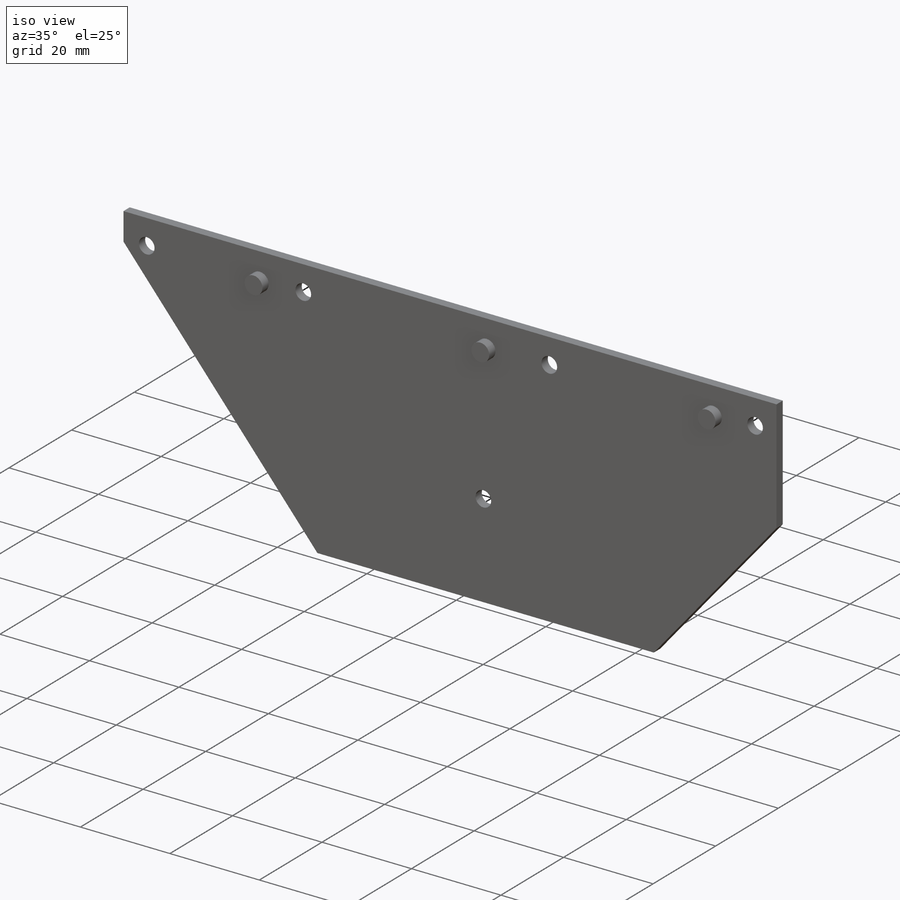
[diagram: iso view]
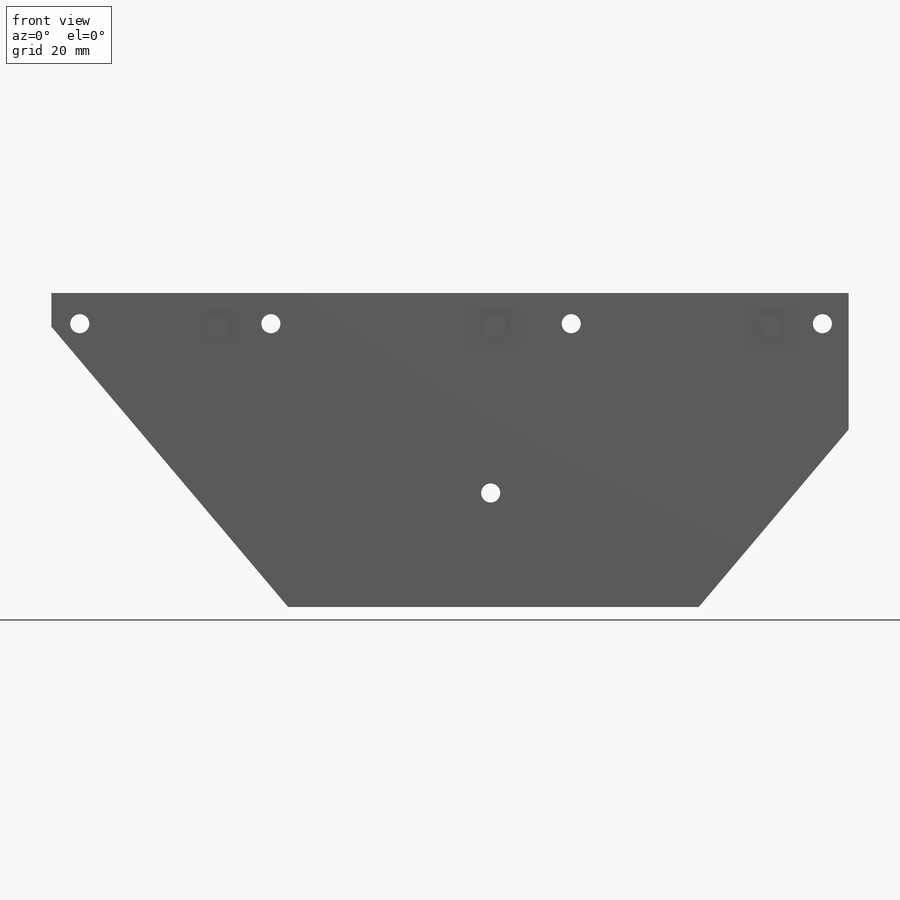
[diagram: front view]
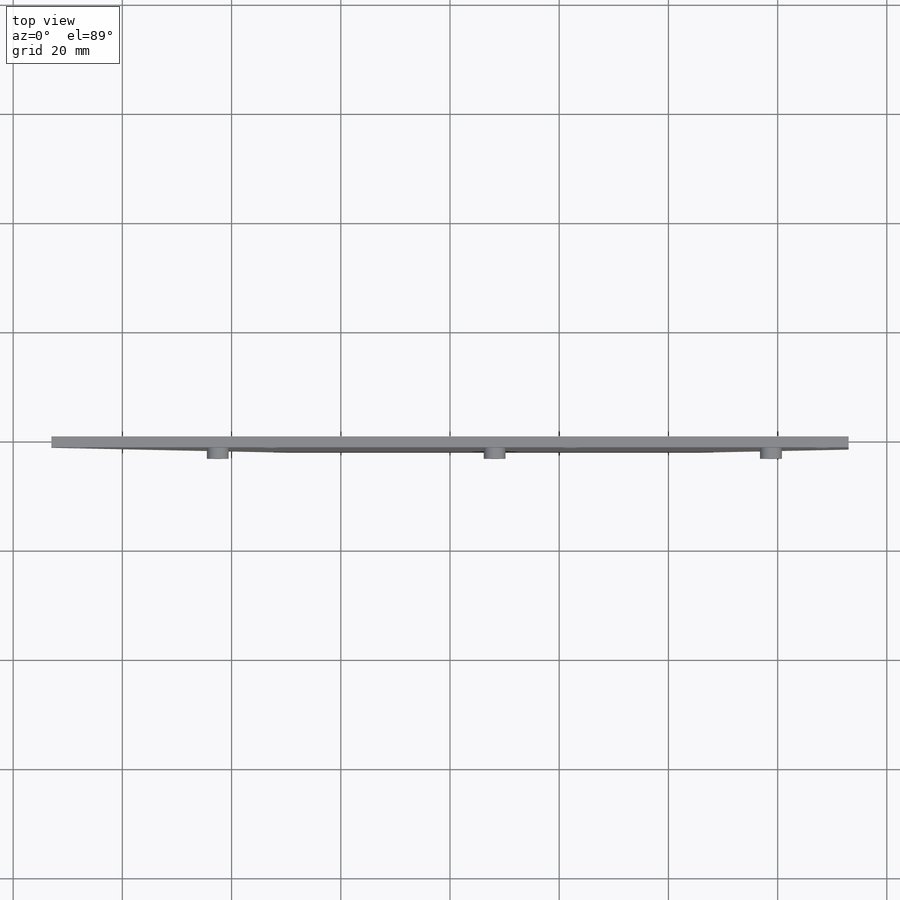
[diagram: top view]
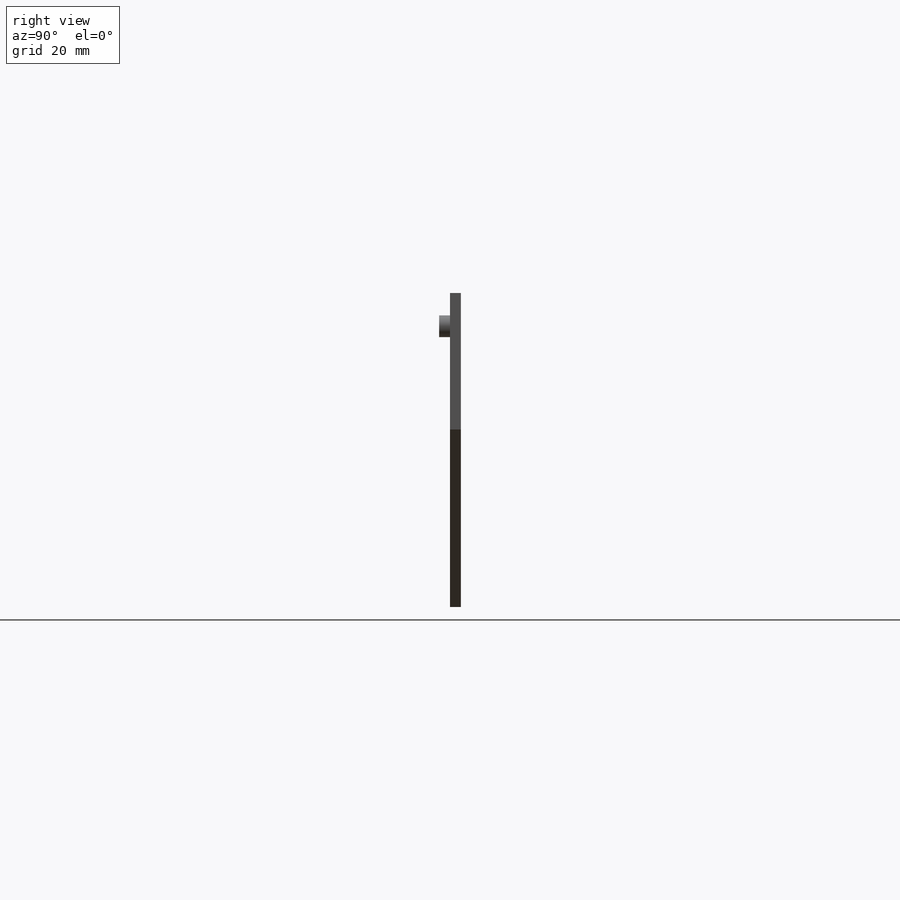
[diagram: right view]
SOLIDWORKS PART (.sldprt)
format: sldprt  version: not decoded by parser v0  size: 181,760 bytes
history: native  units: mm
features: plane x3, sketch x3, extrude x2, material x1, cut_extrude x1 (+9 scaffold rows collapsed)
feature tree (19):
  scaffold x9  (default folders/planes/origin — collapsed)
  material  "Material <não especificado>"
  plane  "Plano frontal"
  plane  "Plano superior"
  plane  "Plano direito"
  sketch  "Esboço1"  dims[c1.D1=~63.373666mm c1.D2=~35.53402mm c2.D1=~121.711014mm c2.D2=~209.286985mm c3.D1=146.0mm c3.D2=57.5mm c3.D3=25.0mm c3.D4=~56.895237mm c4.D4=130.18deg c4.D5=~44.838238mm c5.D5=130.18deg c5.D6=75.2mm]
  extrude  "Ressalto-extrusão1"  Depth=2mm
  sketch  "Esboço2"  dims[c1.D1=3.5mm c1.D2=3.5mm c1.D3=3.5mm c1.D4=3.5mm c1.D5=3.5mm c1.D6=3.5mm c1.D7=3.5mm c2.D1=55.0mm c2.D2=46.0mm c2.D3=90.0mm c2.D4=4.8mm c2.D5=5.62mm c2.D6=31.0mm c2.D7=14.75mm]
  cut_extrude  "Corte-extrusão1"  [1 undecoded]
  sketch  "Esboço3"  dims[c1.D1=4.0mm c1.D2=4.0mm c1.D3=4.0mm c2.D1=50.7mm c2.D2=50.6mm c2.D3=64.83mm]
  extrude  "Ressalto-extrusão2"  Depth=2mm
decode coverage: 5 of 6 modeling features carry decoded parameters
note: ~ marks probable driven/reference dimensions
note: 1 parameter value undecoded
note: suppression state not decoded; provenance and decode notes live in map.json
